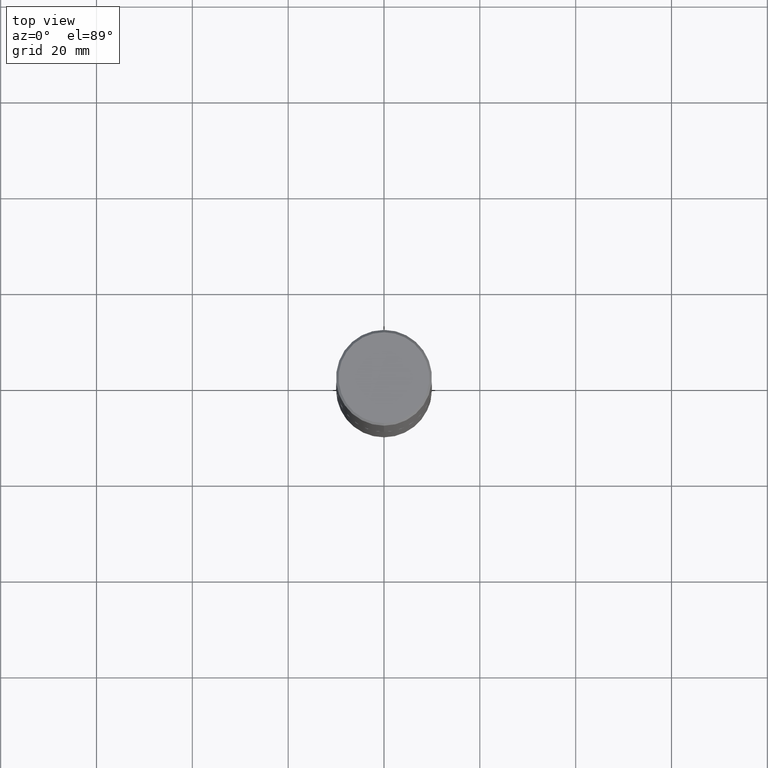
[diagram: clean part render]
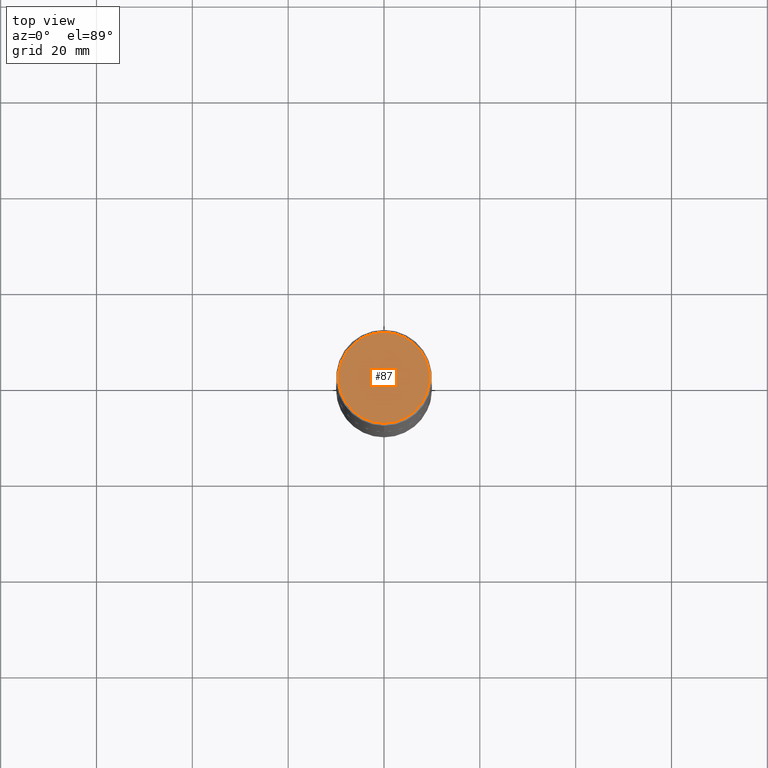
[diagram: same view with one face highlighted and labeled with its STEP entity id]
A machine part, top view. The second image highlights one B-rep face of the part: STEP entity #87.
In plain terms, the highlighted planar face has unit normal (0, -0, -1).
Its self-contained STEP definition (entity closure, byte-faithful):
#32 = CARTESIAN_POINT ( 'NONE',  ( -4.277078807657653030E-45, 6.105338762096597437E-31, 1.748810086434606711E-16 ) ) ;
#51 = DIRECTION ( 'NONE',  ( -2.445707993586407058E-29, 3.491138808870824878E-15, 1.000000000000000000 ) ) ;
#68 = PLANE ( 'NONE',  #113 ) ;
#87 = ADVANCED_FACE ( 'NONE', ( #167 ), #68, .F. ) ;
#113 = AXIS2_PLACEMENT_3D ( 'NONE', #199, #337, #398 ) ;
#134 = CARTESIAN_POINT ( 'NONE',  ( -4.277078807657653030E-45, 6.105338762096597437E-31, 1.748810086434606711E-16 ) ) ;
#159 = EDGE_LOOP ( 'NONE', ( #359, #253 ) ) ;
#160 = DIRECTION ( 'NONE',  ( -6.982962677686265922E-15, -1.000000000000000000, 3.491138808870824878E-15 ) ) ;
#167 = FACE_OUTER_BOUND ( 'NONE', #159, .T. ) ;
#168 = VERTEX_POINT ( 'NONE', #222 ) ;
#169 = EDGE_CURVE ( 'NONE', #175, #168, #299, .T. ) ;
#175 = VERTEX_POINT ( 'NONE', #189 ) ;
#189 = CARTESIAN_POINT ( 'NONE',  ( -2.632373081744935132E-15, -0.3736999999999998101, 1.479519581518487138E-15 ) ) ;
#199 = CARTESIAN_POINT ( 'NONE',  ( 2.609533152651356226E-15, 0.3736999999999998101, -1.217198068553296439E-15 ) ) ;
#222 = CARTESIAN_POINT ( 'NONE',  ( 2.679362779428219524E-15, 0.3736999999999998101, -1.129757564231565944E-15 ) ) ;
#223 = AXIS2_PLACEMENT_3D ( 'NONE', #134, #303, #238 ) ;
#232 = CIRCLE ( 'NONE', #223, 0.3736999999999998101 ) ;
#238 = DIRECTION ( 'NONE',  ( -6.982962677686265922E-15, -1.000000000000000000, 3.491138808870824878E-15 ) ) ;
#242 = EDGE_CURVE ( 'NONE', #168, #175, #232, .T. ) ;
#253 = ORIENTED_EDGE ( 'NONE', *, *, #169, .T. ) ;
#299 = CIRCLE ( 'NONE', #411, 0.3736999999999998101 ) ;
#303 = DIRECTION ( 'NONE',  ( -2.445707993586407058E-29, 3.491138808870824878E-15, 1.000000000000000000 ) ) ;
#337 = DIRECTION ( 'NONE',  ( 2.445707993586407058E-29, -3.491138808870824484E-15, -1.000000000000000000 ) ) ;
#359 = ORIENTED_EDGE ( 'NONE', *, *, #242, .T. ) ;
#398 = DIRECTION ( 'NONE',  ( 6.982962677686265922E-15, 1.000000000000000000, -3.491138808870824484E-15 ) ) ;
#411 = AXIS2_PLACEMENT_3D ( 'NONE', #32, #51, #160 ) ;